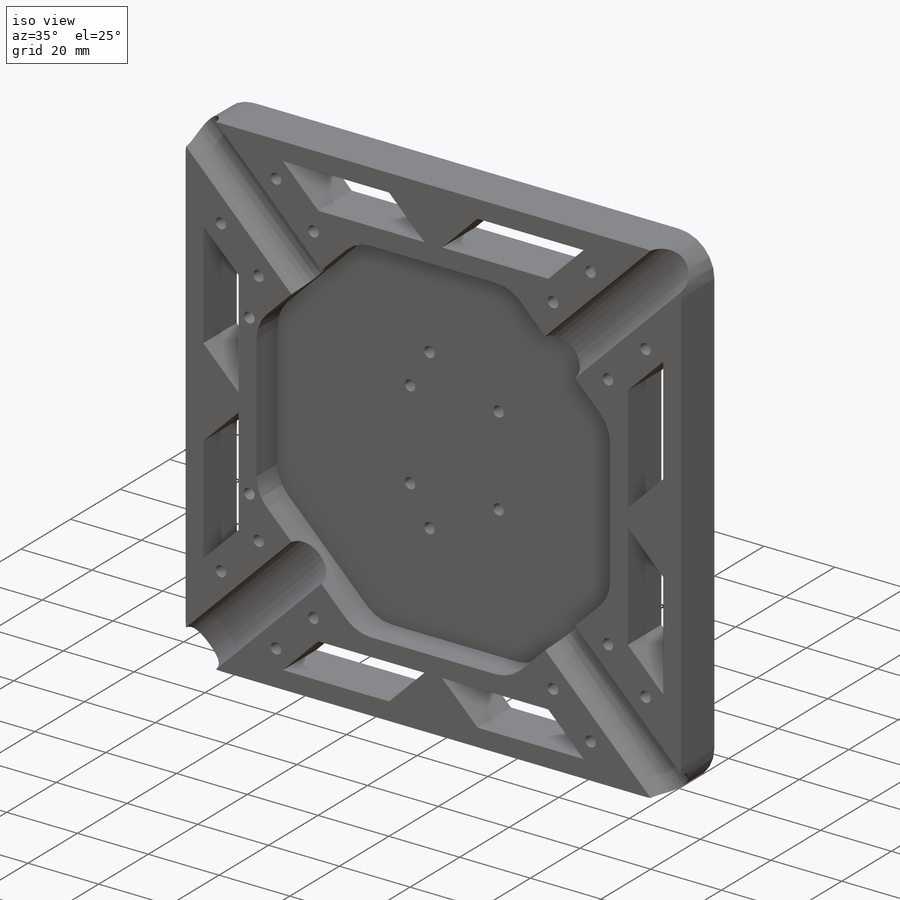
[diagram: iso view]
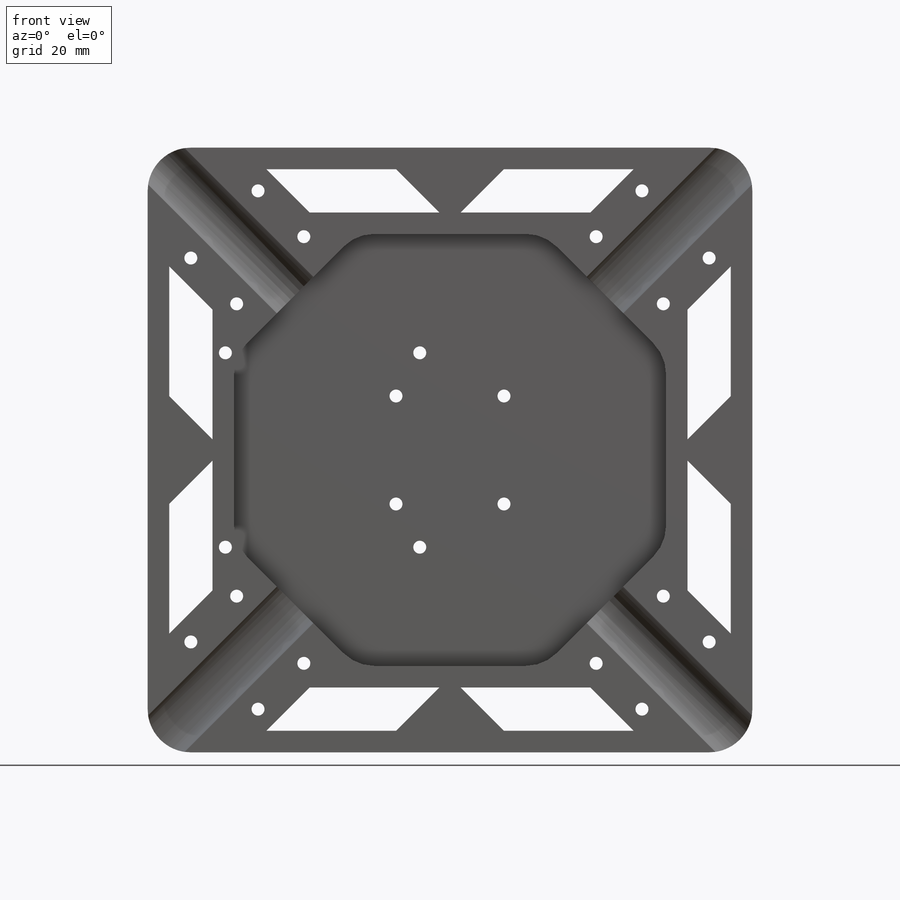
[diagram: front view]
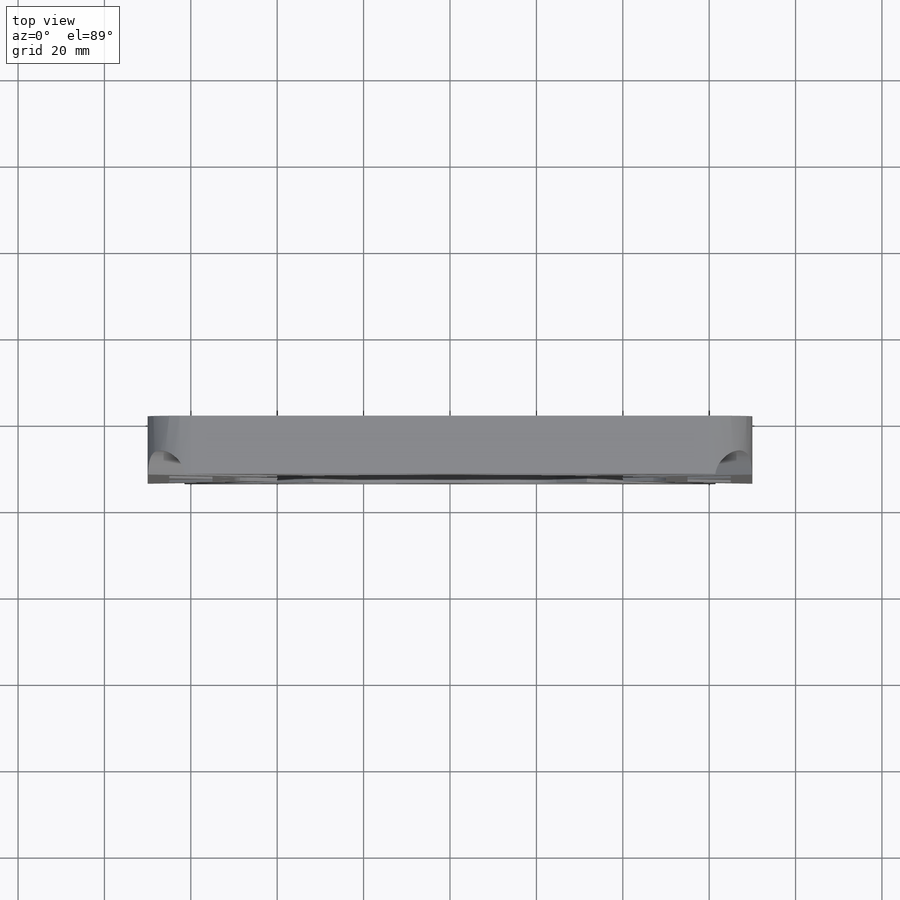
[diagram: top view]
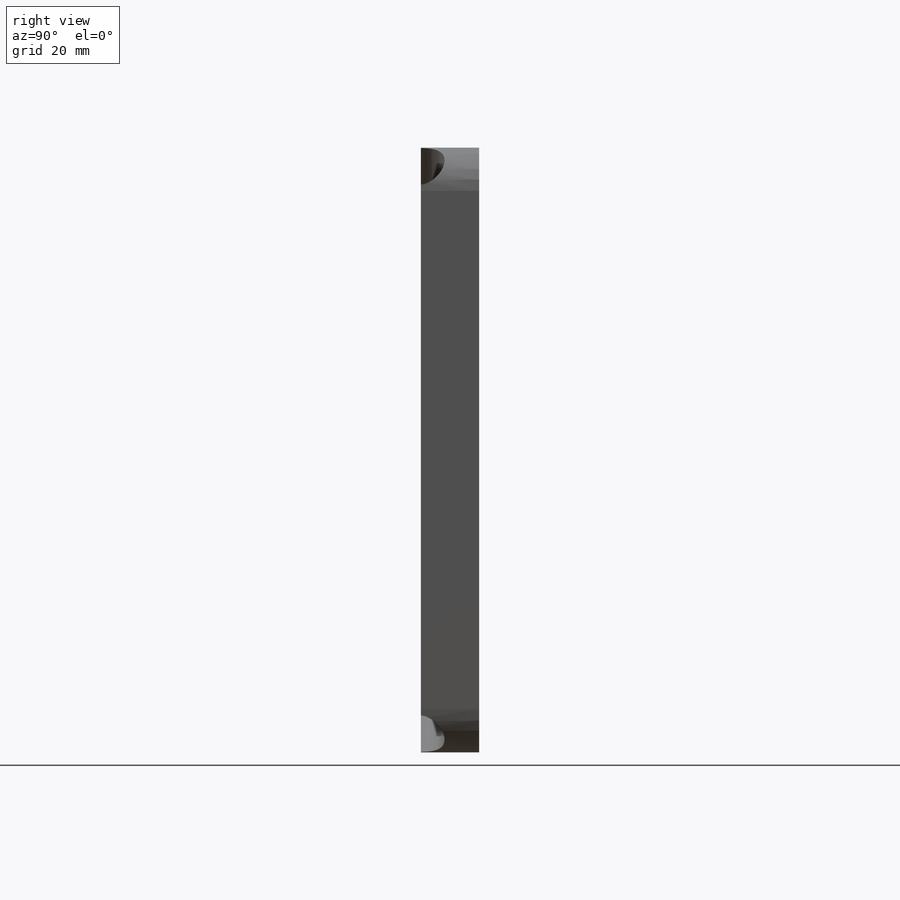
[diagram: right view]
SOLIDWORKS PART (.sldprt)
format: sldprt  version: not decoded by parser v0  size: 423,424 bytes
history: native  units: mm
features: sketch x5, plane x4, cut_extrude x4, material x1, extrude x1, pattern_circular x1, fillet x1 (+8 scaffold rows collapsed)
feature tree (25):
  scaffold x8  (default folders/planes/origin — collapsed)
  material  "Matériau <non spécifié>"
  plane  "Plan de face"
  plane  "Plan de dessus"
  plane  "Plan de droite"
  sketch  "Esquisse1"  dims[D1=140.0mm D2=140.0mm D3=70.0mm D4=70.0mm D5=20.0mm D6=20.0mm D7=100.0mm D8=100.0mm D9=5.0mm D10=5.0mm D11=2.5mm D12=12.5mm D13=30.0mm D14=30.0mm D15=30.0mm D16=30.0mm D17=4.0]
  extrude  "Boss.-Extru.1"  Depth=13.5mm
  plane  "Plan1"
  sketch  "Esquisse4"  dims[D1=100.0mm D2=100.0mm D3=50.0mm D4=50.0mm D5=20.0mm D6=20.0mm D7=20.0mm D8=20.0mm]
  cut_extrude  "Enlèv. mat.-Extru.3"  Depth=8.5mm
  sketch  "Esquisse2"  dims[D2=~6.073163mm D1=14.0mm]
  cut_extrude  "Enlèv. mat.-Extru.1"  Depth=100mm
  pattern_circular  "Répétition circulaire1"  Count=2 Angle=90deg
  fillet  "Congé1"  Radius=10mm
  sketch  "Esquisse3"  dims[D1=3.0mm D2=3.0mm D3=10.0mm D4=10.0mm D5=11.0mm D6=11.0mm D7=4.0]
  cut_extrude  "Enlèv. mat.-Extru.2"  Depth=13.5mm
  sketch  "Esquisse5"  dims[c1.D1=3.0mm c1.D2=3.0mm c1.D3=3.0mm c1.D4=3.0mm c1.D12=3.0mm c1.D21=3.0mm c1.D22=3.0mm c1.D16=3.0mm c1.D17=3.0mm c1.D18=3.0mm c1.D5=45.0mm c1.D6=45.0mm c1.D7=45.0mm c1.D8=45.0mm c1.D9=52.0mm c1.D10=22.5mm c1.D11=57.5mm c1.D13=57.5mm c1.D15=30.0mm c2.D16=30.0mm c2.D17=30.0mm c2.D18=30.0mm c2.D19=7.0mm c2.D20=8.0mm c2.D23=8.0mm c2.D15=11.0mm c3.D16=15.0mm c3.D17=11.0mm c3.D18=15.0mm c3.D14=4.0 c3.D24=4.0]
  cut_extrude  "Enlèv. mat.-Extru.4"  Depth=12.5mm
decode coverage: 12 of 12 modeling features carry decoded parameters
note: ~ marks probable driven/reference dimensions
note: suppression state not decoded; provenance and decode notes live in map.json
